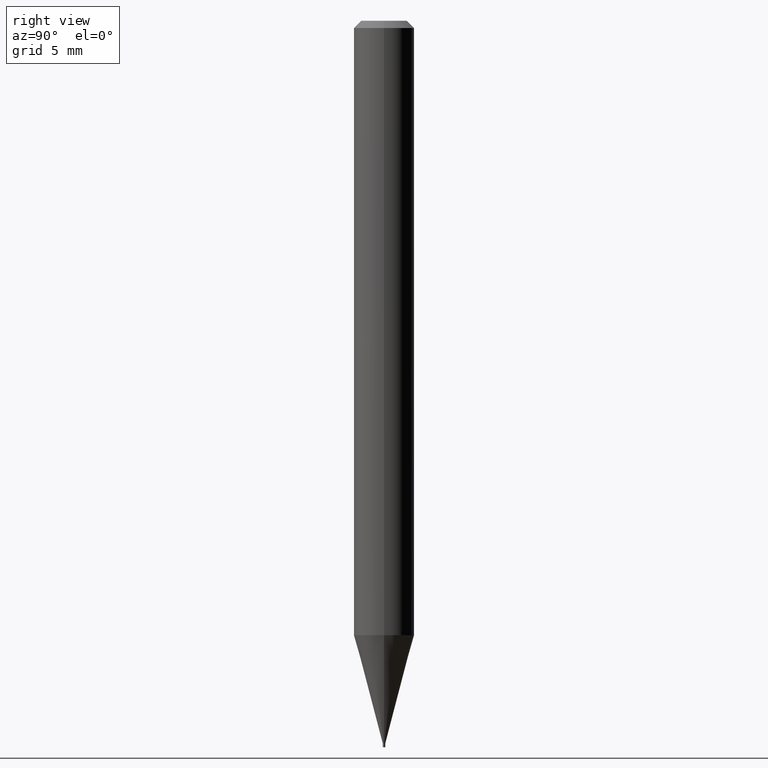
[diagram: clean part render]
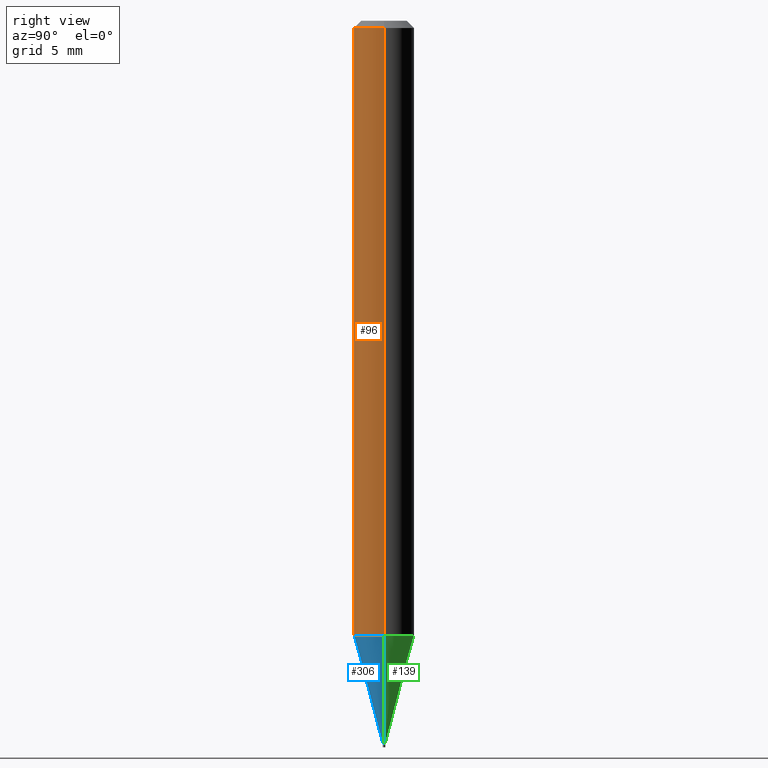
[diagram: same view with three faces highlighted in distinct colors, each labeled with its STEP entity id]
A machine part, right view with three faces highlighted in distinct colors.
Their STEP definitions:

[orange] entity #96 — the highlighted cylindrical surface (edge-blend (fillet) strip) has radius 1.5875 mm, axis along (-0, 0, 1).
#22 = ORIENTED_EDGE ( 'NONE', *, *, #291, .F. ) ;
#38 = VECTOR ( 'NONE', #57, 39.37007874015748143 ) ;
#51 = DIRECTION ( 'NONE',  ( -2.445468806185136597E-29, 3.491481338843145583E-15, 1.000000000000000000 ) ) ;
#57 = DIRECTION ( 'NONE',  ( -2.445468806185136877E-29, 3.491481338843145188E-15, 1.000000000000000000 ) ) ;
#91 = DIRECTION ( 'NONE',  ( 1.000000000000000000, -6.982962677686266711E-15, 0.000000000000000000 ) ) ;
#96 = ADVANCED_FACE ( 'NONE', ( #457 ), #382, .T. ) ;
#130 = DIRECTION ( 'NONE',  ( -2.445468806185136597E-29, 3.491481338843145583E-15, 1.000000000000000000 ) ) ;
#131 = VECTOR ( 'NONE', #329, 39.37007874015748143 ) ;
#149 = EDGE_CURVE ( 'NONE', #305, #331, #191, .T. ) ;
#167 = ORIENTED_EDGE ( 'NONE', *, *, #178, .T. ) ;
#171 = CARTESIAN_POINT ( 'NONE',  ( -0.06250000000000001388, -3.985123543358863743E-15, -1.268576951545869136 ) ) ;
#178 = EDGE_CURVE ( 'NONE', #300, #305, #259, .T. ) ;
#186 = CARTESIAN_POINT ( 'NONE',  ( 0.06250000000000000000, -4.364351673553916694E-16, 3.047610484872459871E-30 ) ) ;
#191 = LINE ( 'NONE', #186, #131 ) ;
#193 = EDGE_LOOP ( 'NONE', ( #218, #167, #419, #22 ) ) ;
#194 = AXIS2_PLACEMENT_3D ( 'NONE', #388, #51, #346 ) ;
#196 = LINE ( 'NONE', #389, #38 ) ;
#218 = ORIENTED_EDGE ( 'NONE', *, *, #332, .F. ) ;
#228 = CARTESIAN_POINT ( 'NONE',  ( -0.06250000000000000000, -1.796703276795724695E-15, -0.01499999999999999944 ) ) ;
#233 = CIRCLE ( 'NONE', #242, 0.06250000000000000000 ) ;
#237 = CARTESIAN_POINT ( 'NONE',  ( 0.06250000000000000000, -4.888073874380388472E-16, -0.01499999999999999944 ) ) ;
#242 = AXIS2_PLACEMENT_3D ( 'NONE', #415, #460, #91 ) ;
#259 = CIRCLE ( 'NONE', #342, 0.06250000000000000000 ) ;
#273 = CARTESIAN_POINT ( 'NONE',  ( 0.06250000000000001388, -4.865647920564318817E-15, -1.268576951545869136 ) ) ;
#285 = VERTEX_POINT ( 'NONE', #228 ) ;
#291 = EDGE_CURVE ( 'NONE', #285, #331, #233, .T. ) ;
#300 = VERTEX_POINT ( 'NONE', #171 ) ;
#304 = DIRECTION ( 'NONE',  ( 1.000000000000000000, -6.982962677686262766E-15, 0.000000000000000000 ) ) ;
#305 = VERTEX_POINT ( 'NONE', #273 ) ;
#329 = DIRECTION ( 'NONE',  ( -2.445468806185136877E-29, 3.491481338843145188E-15, 1.000000000000000000 ) ) ;
#330 = CARTESIAN_POINT ( 'NONE',  ( 3.102265363250856610E-29, -4.429212753208927148E-15, -1.268576951545869136 ) ) ;
#331 = VERTEX_POINT ( 'NONE', #237 ) ;
#332 = EDGE_CURVE ( 'NONE', #300, #285, #196, .T. ) ;
#342 = AXIS2_PLACEMENT_3D ( 'NONE', #330, #130, #304 ) ;
#346 = DIRECTION ( 'NONE',  ( 1.000000000000000000, -6.982962677686266711E-15, 4.876176775795935793E-29 ) ) ;
#382 = CYLINDRICAL_SURFACE ( 'NONE', #194, 0.06250000000000000000 ) ;
#388 = CARTESIAN_POINT ( 'NONE',  ( 0.000000000000000000, 0.000000000000000000, 0.000000000000000000 ) ) ;
#389 = CARTESIAN_POINT ( 'NONE',  ( -0.06250000000000000000, 4.440892098500626162E-16, -3.074334431409316114E-30 ) ) ;
#415 = CARTESIAN_POINT ( 'NONE',  ( 3.668203209277705088E-31, -5.237222008264718399E-17, -0.01499999999999999944 ) ) ;
#419 = ORIENTED_EDGE ( 'NONE', *, *, #149, .T. ) ;
#457 = FACE_OUTER_BOUND ( 'NONE', #193, .T. ) ;
#460 = DIRECTION ( 'NONE',  ( -2.445468806185136597E-29, 3.491481338843145583E-15, 1.000000000000000000 ) ) ;

[blue] entity #306 — the highlighted conical surface has half-angle 15 deg.
#11 = ORIENTED_EDGE ( 'NONE', *, *, #178, .F. ) ;
#13 = CARTESIAN_POINT ( 'NONE',  ( -0.002500000000000199545, -5.193272329829391131E-15, -1.492499999999999938 ) ) ;
#35 = ORIENTED_EDGE ( 'NONE', *, *, #292, .T. ) ;
#48 = EDGE_CURVE ( 'NONE', #183, #305, #241, .T. ) ;
#52 = CARTESIAN_POINT ( 'NONE',  ( 3.649862193231316236E-29, -5.211035898223394834E-15, -1.492499999999999938 ) ) ;
#81 = AXIS2_PLACEMENT_3D ( 'NONE', #226, #163, #134 ) ;
#109 = DIRECTION ( 'NONE',  ( 0.2588190451025218497, 1.565188264969618221E-15, 0.9659258262890679791 ) ) ;
#113 = VECTOR ( 'NONE', #109, 39.37007874015748143 ) ;
#130 = DIRECTION ( 'NONE',  ( -2.445468806185136597E-29, 3.491481338843145583E-15, 1.000000000000000000 ) ) ;
#134 = DIRECTION ( 'NONE',  ( 1.000000000000000000, -6.982962677686358218E-15, 0.000000000000000000 ) ) ;
#140 = VECTOR ( 'NONE', #340, 39.37007874015748143 ) ;
#142 = FACE_OUTER_BOUND ( 'NONE', #410, .T. ) ;
#163 = DIRECTION ( 'NONE',  ( -2.445468806185136597E-29, 3.491481338843145583E-15, 1.000000000000000000 ) ) ;
#171 = CARTESIAN_POINT ( 'NONE',  ( -0.06250000000000001388, -3.985123543358863743E-15, -1.268576951545869136 ) ) ;
#178 = EDGE_CURVE ( 'NONE', #300, #305, #259, .T. ) ;
#183 = VERTEX_POINT ( 'NONE', #266 ) ;
#198 = AXIS2_PLACEMENT_3D ( 'NONE', #52, #310, #456 ) ;
#207 = LINE ( 'NONE', #13, #140 ) ;
#226 = CARTESIAN_POINT ( 'NONE',  ( 3.649862193231316236E-29, -5.211035898223394834E-15, -1.492499999999999938 ) ) ;
#241 = LINE ( 'NONE', #435, #113 ) ;
#259 = CIRCLE ( 'NONE', #342, 0.06250000000000000000 ) ;
#263 = ORIENTED_EDGE ( 'NONE', *, *, #48, .T. ) ;
#266 = CARTESIAN_POINT ( 'NONE',  ( 0.002500000000000199545, -5.228493304917612237E-15, -1.492499999999999938 ) ) ;
#270 = VERTEX_POINT ( 'NONE', #314 ) ;
#273 = CARTESIAN_POINT ( 'NONE',  ( 0.06250000000000001388, -4.865647920564318817E-15, -1.268576951545869136 ) ) ;
#282 = CIRCLE ( 'NONE', #81, 0.002500000000000199545 ) ;
#292 = EDGE_CURVE ( 'NONE', #270, #183, #282, .T. ) ;
#300 = VERTEX_POINT ( 'NONE', #171 ) ;
#304 = DIRECTION ( 'NONE',  ( 1.000000000000000000, -6.982962677686262766E-15, 0.000000000000000000 ) ) ;
#305 = VERTEX_POINT ( 'NONE', #273 ) ;
#306 = ADVANCED_FACE ( 'NONE', ( #142 ), #336, .T. ) ;
#310 = DIRECTION ( 'NONE',  ( -2.445468806185136597E-29, 3.491481338843145583E-15, 1.000000000000000000 ) ) ;
#314 = CARTESIAN_POINT ( 'NONE',  ( -0.002500000000000199545, -4.589197936594127831E-15, -1.492499999999999938 ) ) ;
#330 = CARTESIAN_POINT ( 'NONE',  ( 3.102265363250856610E-29, -4.429212753208927148E-15, -1.268576951545869136 ) ) ;
#336 = CONICAL_SURFACE ( 'NONE', #198, 0.002500000000000199545, 0.2617993877991505736 ) ;
#340 = DIRECTION ( 'NONE',  ( -0.2588190451025218497, 5.211531920934553408E-15, 0.9659258262890679791 ) ) ;
#342 = AXIS2_PLACEMENT_3D ( 'NONE', #330, #130, #304 ) ;
#344 = EDGE_CURVE ( 'NONE', #270, #300, #207, .T. ) ;
#400 = ORIENTED_EDGE ( 'NONE', *, *, #344, .F. ) ;
#410 = EDGE_LOOP ( 'NONE', ( #400, #35, #263, #11 ) ) ;
#435 = CARTESIAN_POINT ( 'NONE',  ( 0.002500000000000199545, -5.228493304917612237E-15, -1.492499999999999938 ) ) ;
#456 = DIRECTION ( 'NONE',  ( 1.000000000000000000, -6.982962677686358218E-15, 0.000000000000000000 ) ) ;

[green] entity #139 — the highlighted conical surface has half-angle 15 deg.
#13 = CARTESIAN_POINT ( 'NONE',  ( -0.002500000000000199545, -5.193272329829391131E-15, -1.492499999999999938 ) ) ;
#15 = CONICAL_SURFACE ( 'NONE', #249, 0.002500000000000199545, 0.2617993877991505736 ) ;
#27 = DIRECTION ( 'NONE',  ( 1.000000000000000000, -6.982962677686358218E-15, 0.000000000000000000 ) ) ;
#46 = DIRECTION ( 'NONE',  ( -2.445468806185136597E-29, 3.491481338843145583E-15, 1.000000000000000000 ) ) ;
#48 = EDGE_CURVE ( 'NONE', #183, #305, #241, .T. ) ;
#53 = CARTESIAN_POINT ( 'NONE',  ( 3.102265363250856610E-29, -4.429212753208927148E-15, -1.268576951545869136 ) ) ;
#58 = AXIS2_PLACEMENT_3D ( 'NONE', #53, #46, #265 ) ;
#74 = ORIENTED_EDGE ( 'NONE', *, *, #344, .T. ) ;
#79 = EDGE_CURVE ( 'NONE', #305, #300, #351, .T. ) ;
#109 = DIRECTION ( 'NONE',  ( 0.2588190451025218497, 1.565188264969618221E-15, 0.9659258262890679791 ) ) ;
#113 = VECTOR ( 'NONE', #109, 39.37007874015748143 ) ;
#139 = ADVANCED_FACE ( 'NONE', ( #311 ), #15, .T. ) ;
#140 = VECTOR ( 'NONE', #340, 39.37007874015748143 ) ;
#143 = CARTESIAN_POINT ( 'NONE',  ( 3.649862193231316236E-29, -5.211035898223394834E-15, -1.492499999999999938 ) ) ;
#151 = AXIS2_PLACEMENT_3D ( 'NONE', #245, #462, #27 ) ;
#171 = CARTESIAN_POINT ( 'NONE',  ( -0.06250000000000001388, -3.985123543358863743E-15, -1.268576951545869136 ) ) ;
#181 = ORIENTED_EDGE ( 'NONE', *, *, #453, .T. ) ;
#183 = VERTEX_POINT ( 'NONE', #266 ) ;
#201 = ORIENTED_EDGE ( 'NONE', *, *, #48, .F. ) ;
#207 = LINE ( 'NONE', #13, #140 ) ;
#219 = DIRECTION ( 'NONE',  ( 1.000000000000000000, -6.982962677686358218E-15, 0.000000000000000000 ) ) ;
#241 = LINE ( 'NONE', #435, #113 ) ;
#245 = CARTESIAN_POINT ( 'NONE',  ( 3.649862193231316236E-29, -5.211035898223394834E-15, -1.492499999999999938 ) ) ;
#249 = AXIS2_PLACEMENT_3D ( 'NONE', #143, #290, #219 ) ;
#265 = DIRECTION ( 'NONE',  ( 1.000000000000000000, -6.982962677686262766E-15, 0.000000000000000000 ) ) ;
#266 = CARTESIAN_POINT ( 'NONE',  ( 0.002500000000000199545, -5.228493304917612237E-15, -1.492499999999999938 ) ) ;
#270 = VERTEX_POINT ( 'NONE', #314 ) ;
#273 = CARTESIAN_POINT ( 'NONE',  ( 0.06250000000000001388, -4.865647920564318817E-15, -1.268576951545869136 ) ) ;
#290 = DIRECTION ( 'NONE',  ( -2.445468806185136597E-29, 3.491481338843145583E-15, 1.000000000000000000 ) ) ;
#294 = CIRCLE ( 'NONE', #151, 0.002500000000000199545 ) ;
#300 = VERTEX_POINT ( 'NONE', #171 ) ;
#305 = VERTEX_POINT ( 'NONE', #273 ) ;
#311 = FACE_OUTER_BOUND ( 'NONE', #356, .T. ) ;
#314 = CARTESIAN_POINT ( 'NONE',  ( -0.002500000000000199545, -4.589197936594127831E-15, -1.492499999999999938 ) ) ;
#322 = ORIENTED_EDGE ( 'NONE', *, *, #79, .F. ) ;
#340 = DIRECTION ( 'NONE',  ( -0.2588190451025218497, 5.211531920934553408E-15, 0.9659258262890679791 ) ) ;
#344 = EDGE_CURVE ( 'NONE', #270, #300, #207, .T. ) ;
#351 = CIRCLE ( 'NONE', #58, 0.06250000000000000000 ) ;
#356 = EDGE_LOOP ( 'NONE', ( #181, #74, #322, #201 ) ) ;
#435 = CARTESIAN_POINT ( 'NONE',  ( 0.002500000000000199545, -5.228493304917612237E-15, -1.492499999999999938 ) ) ;
#453 = EDGE_CURVE ( 'NONE', #183, #270, #294, .T. ) ;
#462 = DIRECTION ( 'NONE',  ( -2.445468806185136597E-29, 3.491481338843145583E-15, 1.000000000000000000 ) ) ;